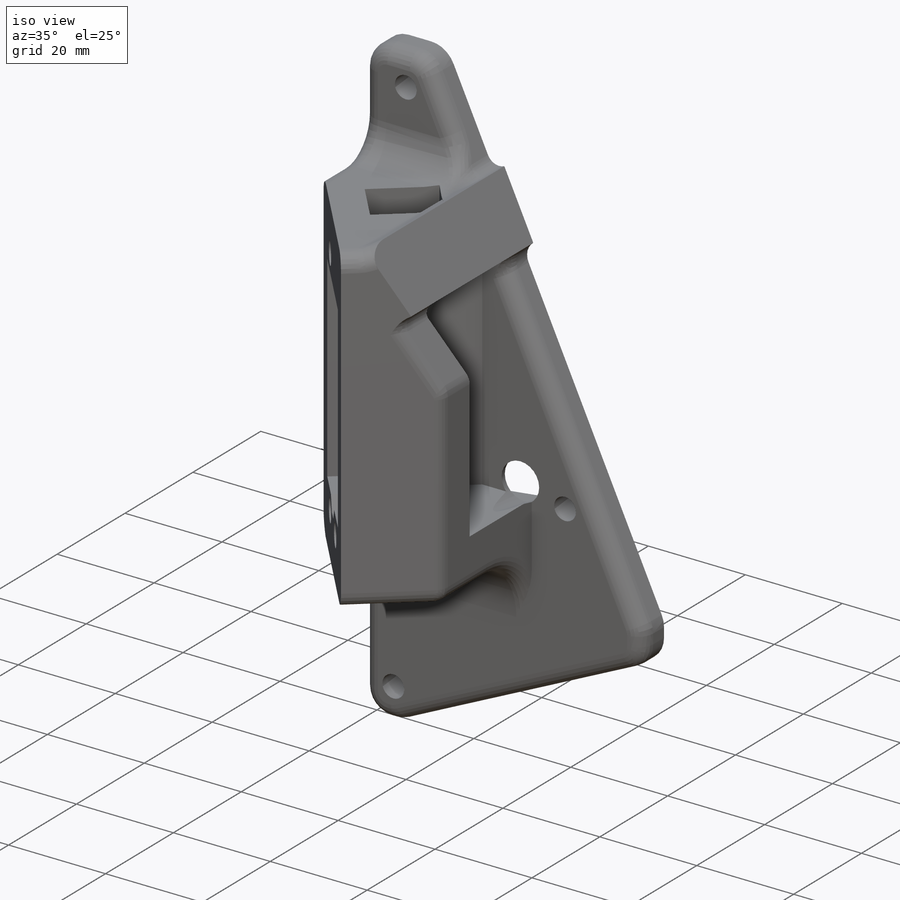
[diagram: iso view]
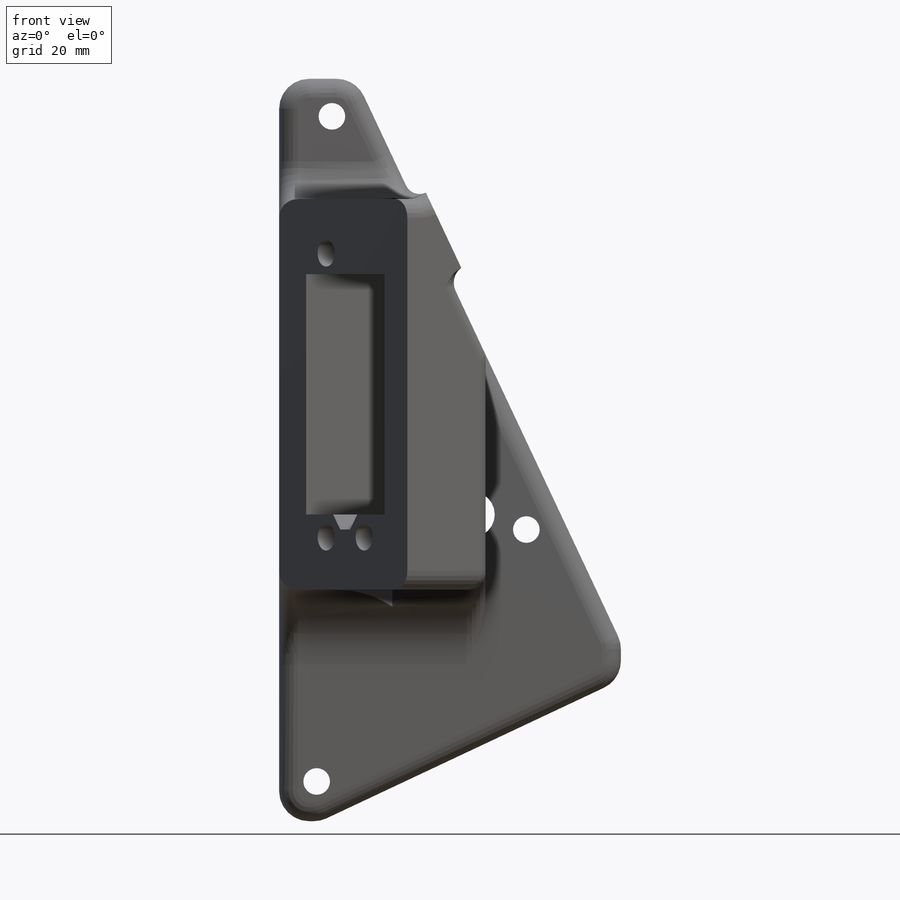
[diagram: front view]
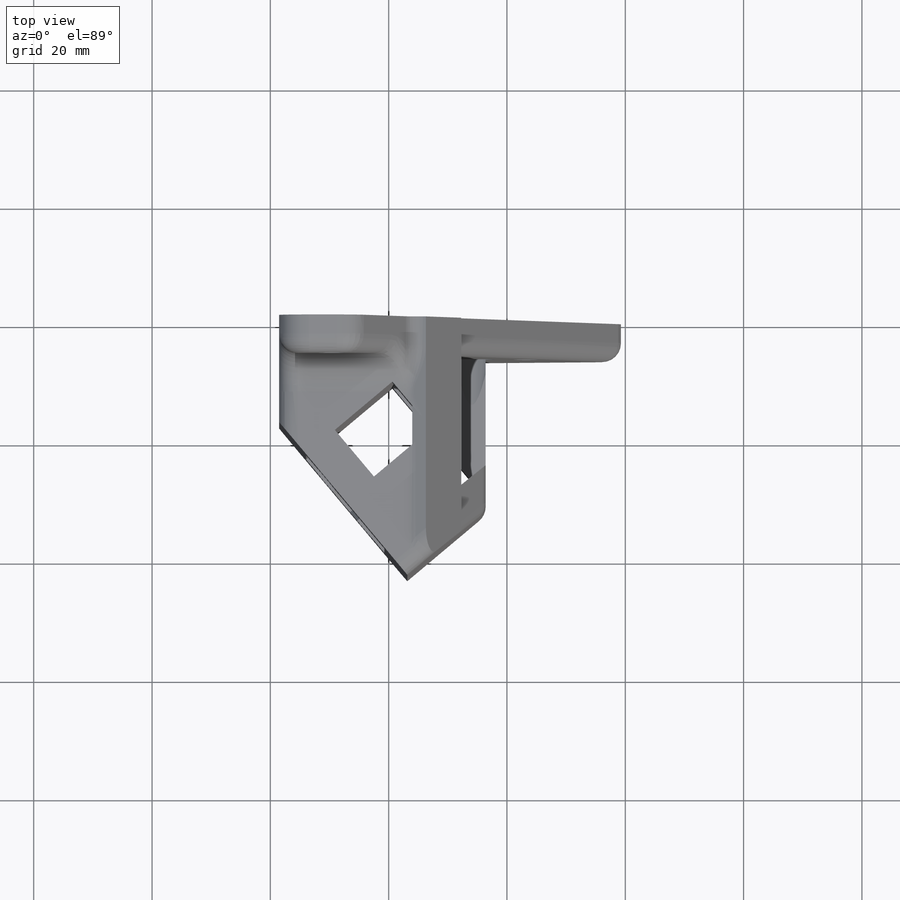
[diagram: top view]
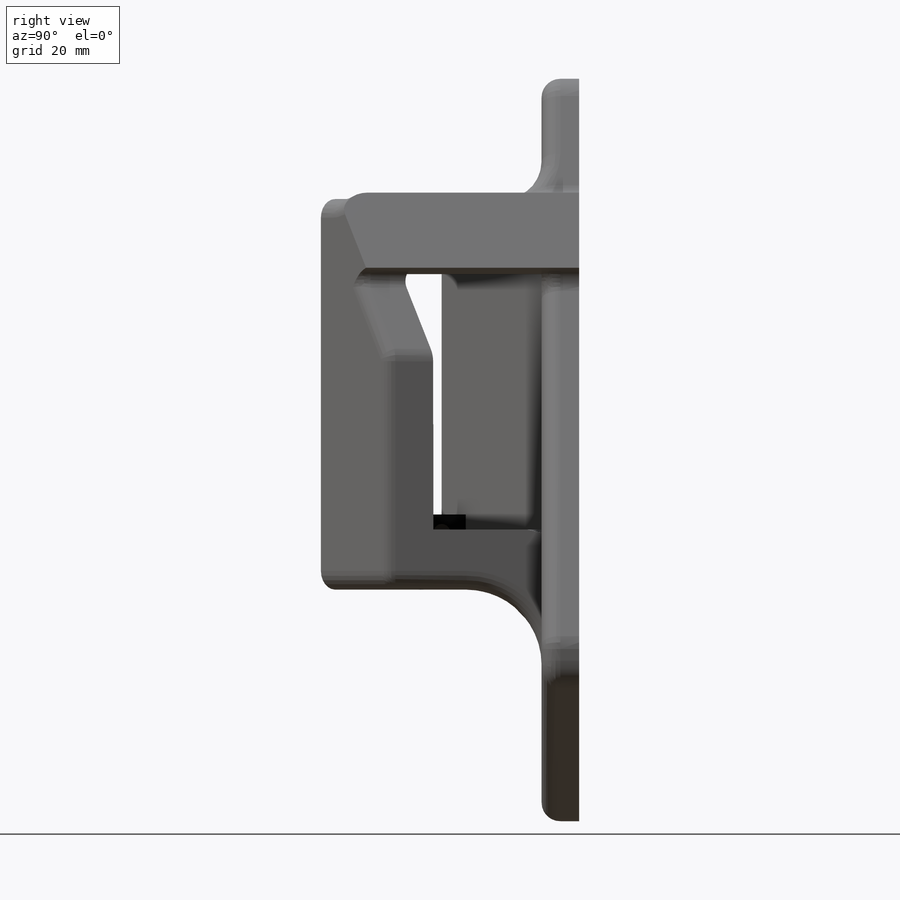
[diagram: right view]
SOLIDWORKS PART (.sldprt)
format: sldprt  version: not decoded by parser v0  size: 785,920 bytes
history: native  units: mm
features: sketch x23, cut_extrude x17, fillet x8, plane x5, extrude x3, material x1 (+13 scaffold rows collapsed)
feature tree (70):
  scaffold x13  (default folders/planes/origin — collapsed)
  material  "ABS"
  sketch  "Sketch1"  dims[c1.D9=76.2mm c1.D14=76.2mm c1.D8=12.7mm c1.D1=419.1mm c1.D2=101.6mm c1.D3=19.05mm c1.D4=19.05mm c1.D5=~447.578732mm c2.D5=84.5deg c2.D6=40.0mm c2.D7=400.0mm c2.D8=95.25mm c2.D9=10.0mm c2.D10=20.0mm c2.D11=114.3mm c2.D12=200.025mm c2.D13=95.25mm c2.D14=6.35mm c2.D15=127.0mm c2.D16=95.25mm c2.D17=203.2mm c3.D12=95.25mm c3.D10=9.525mm c3.D13=9.525mm c3.D14=76.2mm c3.D9=76.2mm c4.D14=~29.170225mm c4.D9=9.525mm c4.D16=82.55mm c4.D12=76.2mm c5.D14=25.4mm c5.D16=9.525mm c5.D18=6.35mm c5.D19=50.8mm c5.D20=44.45mm c5.D21=6.35mm c5.D22=50.8mm c6.D22=~64.798876deg c7.D22=50.8mm]
  sketch  "Sketch2"  dims[D1=12.7mm D2=20.0mm]
  plane  "Plane1"
  plane  "Plane2"  Offset=76.2mm
  sketch  "Sketch4"  dims[c1.D1=~19.99996mm c1.D2=26.4922mm c1.D3=12.954mm c1.D4=20.0mm c2.D4=40.0deg c2.D5=25.4mm]
  sketch  "Sketch5"  dims[c1.D1=5.08mm c1.D2=26.4922mm c2.D2=~176.518301deg c3.D2=6.35mm]
  extrude  "Boss-Extrude1"  Depth=127mm
  sketch  "Sketch6"  dims[D1=27.94mm D2=20.574mm]
  cut_extrude  "Cut-Extrude1"  Depth=10.16mm
  sketch  "Sketch7"
  cut_extrude  "Cut-Extrude2"  [1 undecoded]
  sketch  "Sketch8"  dims[D4=4.5mm D1=10.0mm D2=48.0mm D3=14.0mm D5=6.35mm D6=2.54mm D7=2.54mm]
  cut_extrude  "Cut-Extrude3"  Depth=19.05mm
  sketch  "Sketch9"
  cut_extrude  "Cut-Extrude4"  [1 undecoded]
  plane  "Plane3"  Offset=6.35mm
  sketch  "Sketch10"  dims[D1=12.7mm]
  cut_extrude  "Cut-Extrude5"  Depth=12.7mm
  sketch  "Sketch12"  dims[c1.D5=4.5mm c1.D1=6.35mm c1.D2=6.35mm c1.D3=19.05mm c1.D4=63.5mm c1.D6=6.35mm c1.D7=6.35mm c2.D4=6.35mm]
  cut_extrude  "Cut-Extrude7"  [1 undecoded]
  plane  "Plane4"  Offset=6.35mm
  sketch  "Sketch13"  dims[D1=13.97mm]
  cut_extrude  "Cut-Extrude11"  [1 undecoded]
  plane  "Plane5"  Offset=16.51mm
  sketch  "Sketch21"  dims[D1=10.0mm]
  cut_extrude  "Cut-Extrude16"  Depth=17.78mm
  sketch  "Sketch22"  dims[D1=12.7mm]
  cut_extrude  "Cut-Extrude17"  Depth=5.08mm
  sketch  "Sketch23"  dims[D1=12.7mm D2=12.7mm]
  cut_extrude  "Cut-Extrude18"  [1 undecoded]
  sketch  "Sketch24"  dims[D1=2.54mm]
  cut_extrude  "Cut-Extrude19"  [1 undecoded]
  sketch  "Sketch26"
  cut_extrude  "Cut-Extrude20"  [1 undecoded]
  sketch  "Sketch27"
  cut_extrude  "Cut-Extrude21"  Depth=12.7mm
  sketch  "Sketch28"  dims[D1=19.05mm]
  extrude  "Boss-Extrude2"  Depth=2.54mm
  sketch  "Sketch29"
  cut_extrude  "Cut-Extrude22"  [1 undecoded]
  sketch  "Sketch32"
  extrude  "Boss-Extrude7"  [1 undecoded]
  sketch  "Sketch30"
  cut_extrude  "Cut-Extrude23"  Depth=25.4mm
  sketch  "Sketch33"
  cut_extrude  "Cut-Extrude26"  Depth=25.4mm
  sketch  "Sketch34"
  cut_extrude  "Cut-Extrude27"  [1 undecoded]
  fillet  "Fillet21"  Radius=12.7mm
  fillet  "Fillet23"  Radius=6.35mm
  fillet  "Fillet24"  Radius=5.08mm
  fillet  "Fillet25"  Radius=3.175mm
  fillet  "Fillet26"  Radius=3.175mm
  fillet  "Fillet27"  Radius=2.54mm
  fillet  "Fillet28"  Radius=3.175mm
  fillet  "Fillet29"  Radius=3.175mm
decode coverage: 32 of 51 modeling features carry decoded parameters
note: ~ marks probable driven/reference dimensions
note: 10 parameter values undecoded
summary: no parameter record found for 10 features
note: suppression state not decoded; provenance and decode notes live in map.json
